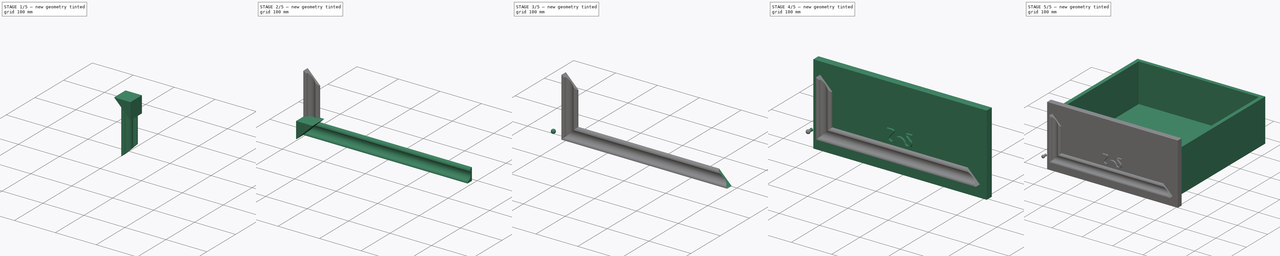
[diagram: build sequence overview — one tinted view per stage of 5, left to right]
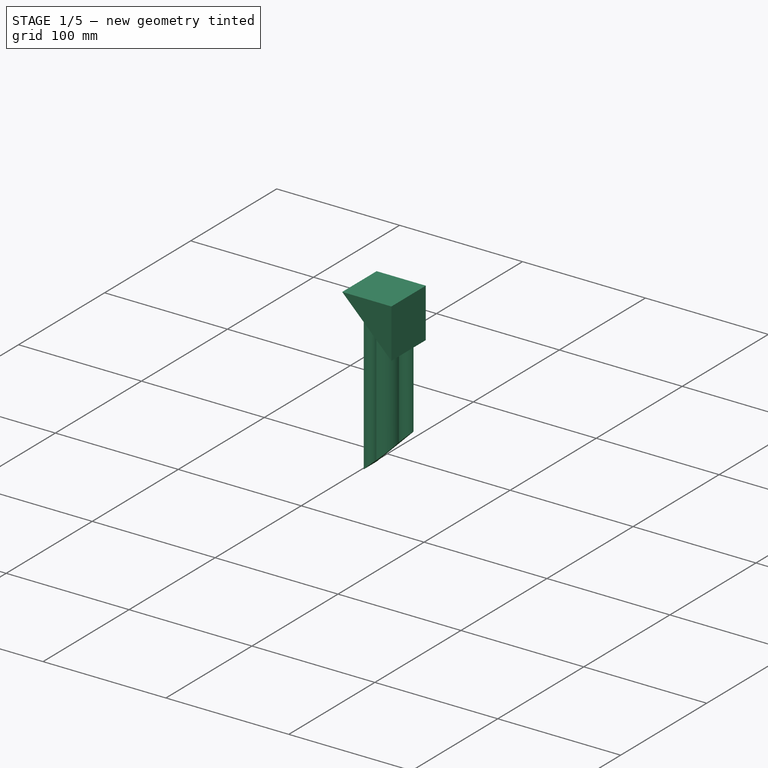
[diagram: stage 1 of 5 — iso view after this stage's code; geometry added in this stage tinted green]
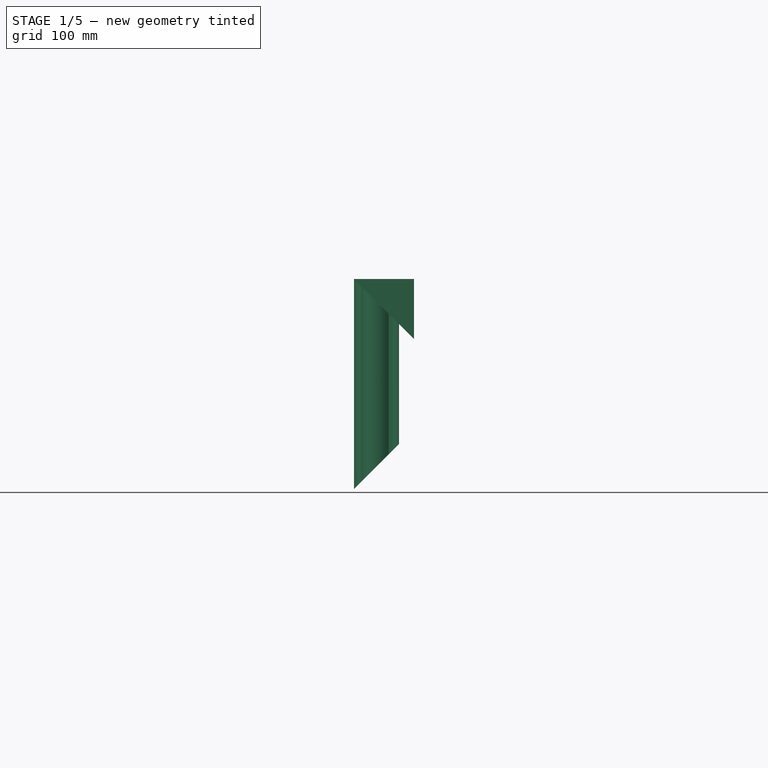
[diagram: stage 1 of 5 — front view after this stage's code; geometry added in this stage tinted green]
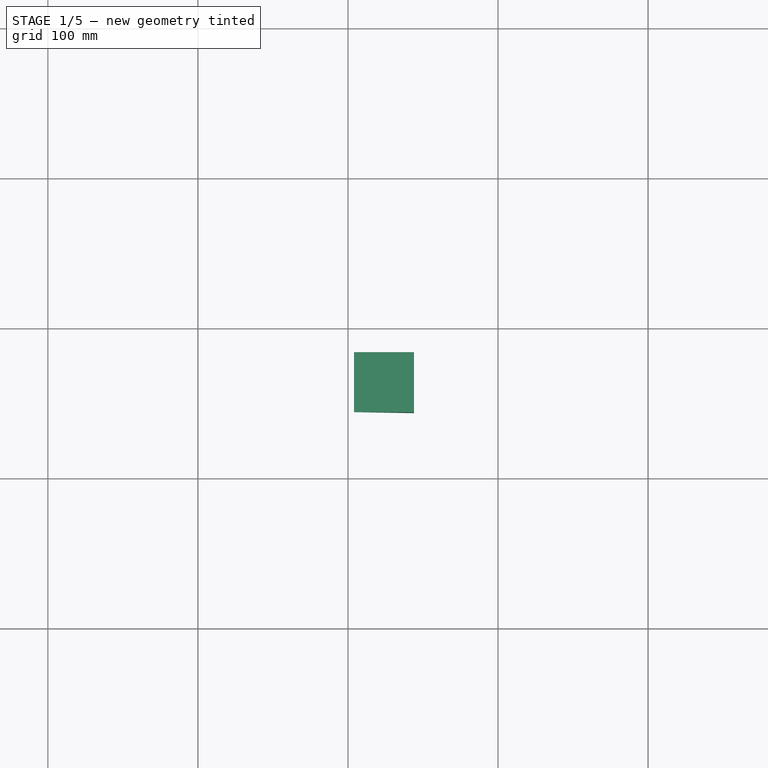
[diagram: stage 1 of 5 — top view after this stage's code; geometry added in this stage tinted green]
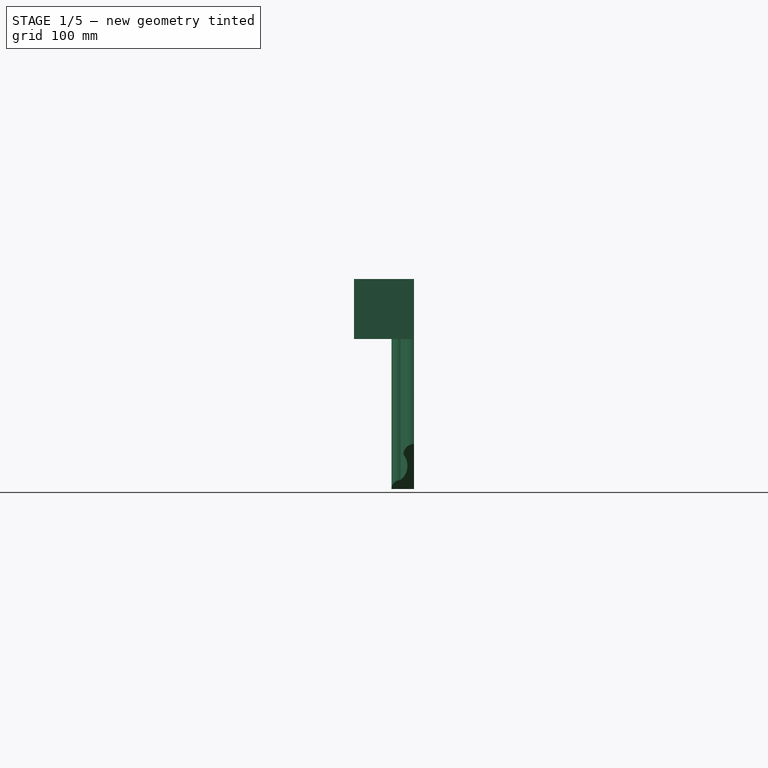
[diagram: stage 1 of 5 — right view after this stage's code; geometry added in this stage tinted green]
FCSTD DOCUMENT  (FreeCAD 1.1R20260325 (Git shallow))
Label: Drawer_002
License: All rights reserved
LicenseURL: http://en.wikipedia.org/wiki/All_rights_reserved
objects: App::Point×10, Sketcher::SketchObject×7, PartDesign::Pad×7, PartDesign::Body×7, App::LinkGroup×6, Part::Box×5, Part::Cut×4, App::Part×3, App::Link×3, Spreadsheet::Sheet×1, Part::Cone×1, Part::Sphere×1
note: 53 computed .brp shape members not serialized (recipe doc carries the construction recipe); baked Part::Feature solids carry a one-line shape summary decoded from their .brp

FEATURE [App::Part] Part001  label="Part, Decoration, Bottom"
  Group = -> [Body,Body007,Body008,Cut,Cut001]
  Origin = -> Origin008
FEATURE [App::LinkGroup] LinkGroup002  label="LinkGroup, Decoration, Bottom"
  ElementList = -> [Part001]
  LinkMode = 0
  Texture_Repeat_X = 1
  Texture_Repeat_Y = 1
  Texture_Rotation = 0
  Texture_URL = https://upload.wikimedia.org/wikipedia/commons/d/d1/Wood_001_red_light.jpg
FEATURE [App::Link] Link001  label="Link, Decoration, Top"
  LinkPlacement = pos=(404,0,140) rot=(0,1,0;3.14159rad)
  LinkedObject = -> LinkGroup002
  Placement = pos=(404,0,140) rot=(0,1,0;3.14159rad)
  expr: .Placement.Base.x = 2 * <<settings>>.bsink + <<settings>>.dwidth - 2 * <<settings>>.dthick
  expr: .Placement.Base.z = <<settings>>.dheight
FEATURE [Sketcher::SketchObject] Sketch009  label="Pattern, Decoration, Left"
  ArcFitTolerance = 0
  AttachmentOffset = pos=(4,-18,0) rot=(0,0,1;0rad)
  AttachmentSupport = -> [XY_Plane012]
  ExternalTypes = [0]
  FullyConstrained = true
  MakeInternals = false
  MapMode = 5
  Placement = pos=(4,-18,0) rot=(0,0,1;0rad)
  _ExternalGeoVersion = 0
  expr: .AttachmentOffset.Base.x = <<settings>>.bsink
  expr: .AttachmentOffset.Base.y = -<<settings>>.fthick
  sketch-geometry (5):
    g0: LineSegment StartX=30 StartY=-1.8e-15 StartZ=0 EndX=0 EndY=-1.8e-15 EndZ=0
    g1: LineSegment StartX=0 StartY=-15 StartZ=0 EndX=0 EndY=-1.8e-15 EndZ=0
    g2: ArcOfCircle CenterX=0 CenterY=-9 CenterZ=0 NormalX=0 NormalY=0 NormalZ=1 AngleXU=0 Radius=6 StartAngle=4.71239 EndAngle=6.28319
    g3: ArcOfCircle CenterX=15.4828 CenterY=-16.3537 CenterZ=0 NormalX=0 NormalY=0 NormalZ=1 AngleXU=0 Radius=12 StartAngle=0.893826 EndAngle=2.48198
    g4: ArcOfCircle CenterX=23 CenterY=0 CenterZ=0 NormalX=0 NormalY=0 NormalZ=1 AngleXU=0 Radius=7 StartAngle=4.71239 EndAngle=6.28319
  constraints (17):
    c: Vertical(g1)
    c: Coincident(g0,g1)
    c: Horizontal(g0)
    c: Coincident(g0,g-1)
    c: DistanceY(g1,g1) = 15
    c: DistanceX(g0,g0) = 30
    c: Coincident(g2,g1)
    c: Coincident(g3,g2)
    c: Coincident(g4,g3)
    c: Coincident(g4,g0)
    c: PointOnObject(g4,g0)
    c: PointOnObject(g2,g1)
    c: Radius(g2) = 6
    c: Radius(g3) = 12
    c: Radius(g4) = 7
    c: Horizontal(g2,g2)
    c: Vertical(g3,g4)
FEATURE [PartDesign::Pad] Pad009  label="Decoration, Left"
  Direction = (0,0,1)
  Length = 140
  Length2 = 10
  Profile = -> Sketch009
  ReferenceAxis = -> Sketch009 [N_Axis]
  SideType = 0
  Suppressed = false
  Type = 0
  Type2 = 0
  expr: Length = <<settings>>.dheight
FEATURE [PartDesign::Body] Body009  label="Body, Decoration, Left"
  AllowCompound = true
  Group = -> [Sketch009,Pad009]
  Origin = -> Origin013
  Tip = -> Pad009
FEATURE [Sketcher::SketchObject] Sketch010  label="Pattern, Decoration, Left, Cut, Bottom"
  ArcFitTolerance = 0
  AttachmentOffset = pos=(4,0,18) rot=(0,0,1;0rad)
  AttachmentSupport = -> [XZ_Plane013]
  ExternalTypes = [0]
  FullyConstrained = true
  MakeInternals = false
  MapMode = 5
  Placement = pos=(4,-18,4e-15) rot=(1,0,0;1.5708rad)
  _ExternalGeoVersion = 0
  expr: .AttachmentOffset.Base.x = <<settings>>.bsink
  expr: .AttachmentOffset.Base.z = <<settings>>.fthick
  sketch-geometry (3):
    g0: LineSegment StartX=0 StartY=0 StartZ=0 EndX=40 EndY=40 EndZ=0
    g1: LineSegment StartX=40 StartY=40 StartZ=0 EndX=40 EndY=0 EndZ=0
    g2: LineSegment StartX=40 StartY=0 StartZ=0 EndX=0 EndY=0 EndZ=0
  constraints (8):
    c: Coincident(g-1,g0)
    c: Coincident(g0,g1)
    c: PointOnObject(g1,g-1)
    c: Vertical(g1)
    c: Coincident(g1,g2)
    c: Coincident(g2,g0)
    c: Equal(g1,g2)
    c: DistanceY(g1,g1) = 40
FEATURE [PartDesign::Pad] Pad010  label="Decoration, Left, Cut, Bottom"
  Direction = (0,-1,2e-16)
  Length = 40
  Length2 = 10
  Placement = pos=(0,0,0) rot=(1,0,0;1.5708rad)
  Profile = -> Sketch010
  ReferenceAxis = -> Sketch010 [N_Axis]
  SideType = 0
  Suppressed = false
  Type = 0
  Type2 = 0
FEATURE [PartDesign::Body] Body010  label="Body, Decoration, Left, Cut, Bottom"
  AllowCompound = true
  Group = -> [Sketch010,Pad010]
  Origin = -> Origin014
  Tip = -> Pad010
FEATURE [Sketcher::SketchObject] Sketch011  label="Pattern, Decoration, Left, Cut, Top"
  ArcFitTolerance = 0
  AttachmentOffset = pos=(4,140,18) rot=(0,0,1;0rad)
  AttachmentSupport = -> [XZ_Plane014]
  ExternalTypes = [0]
  FullyConstrained = true
  MakeInternals = false
  MapMode = 5
  Placement = pos=(4,-18,140) rot=(1,0,0;1.5708rad)
  _ExternalGeoVersion = 0
  expr: .AttachmentOffset.Base.x = <<settings>>.bsink
  expr: .AttachmentOffset.Base.y = <<settings>>.dheight
  expr: .AttachmentOffset.Base.z = <<settings>>.fthick
  sketch-geometry (3):
    g0: LineSegment StartX=0 StartY=0 StartZ=0 EndX=40 EndY=-40 EndZ=0
    g1: LineSegment StartX=40 StartY=-40 StartZ=0 EndX=40 EndY=0 EndZ=0
    g2: LineSegment StartX=40 StartY=0 StartZ=0 EndX=0 EndY=0 EndZ=0
  constraints (8):
    c: Coincident(g-1,g0)
    c: Coincident(g0,g1)
    c: PointOnObject(g1,g-1)
    c: Vertical(g1)
    c: Coincident(g1,g2)
    c: Coincident(g2,g0)
    c: Equal(g1,g2)
    c: DistanceY(g1,g1) = 40
FEATURE [PartDesign::Pad] Pad011  label="Decoration, Left, Cut, Top"
  Direction = (0,-1,2e-16)
  Length = 40
  Length2 = 10
  Placement = pos=(0,0,0) rot=(1,0,0;1.5708rad)
  Profile = -> Sketch011
  ReferenceAxis = -> Sketch011 [N_Axis]
  SideType = 0
  Suppressed = false
  Type = 0
  Type2 = 0
FEATURE [PartDesign::Body] Body011  label="Body, Decoration, Left, Cut, Top"
  AllowCompound = true
  Group = -> [Sketch011,Pad011]
  Origin = -> Origin015
  Tip = -> Pad011
FEATURE [Part::Cut] Cut002
  Base = -> Body009
  Tool = -> Body010
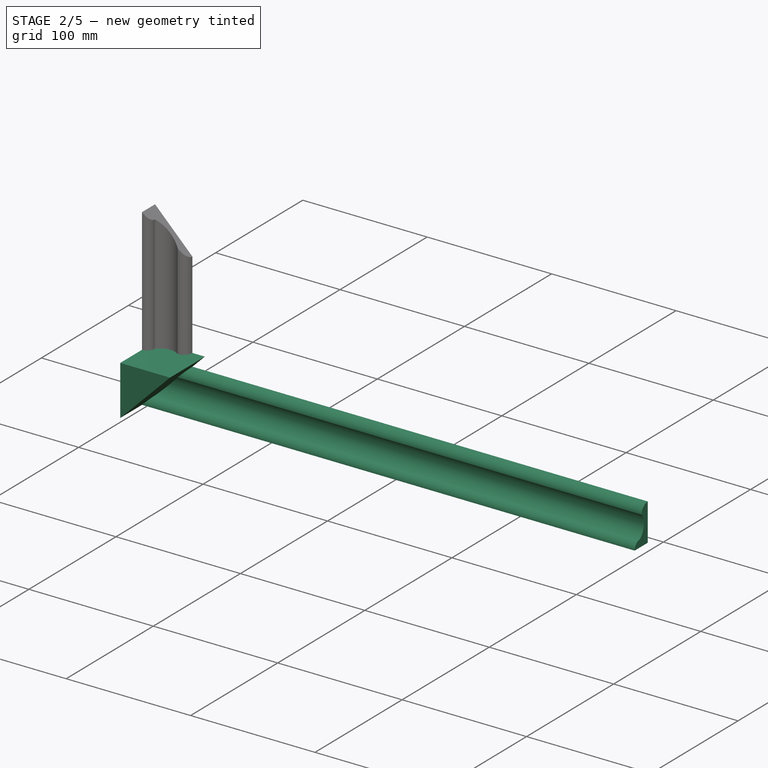
[diagram: stage 2 of 5 — iso view after this stage's code; geometry added in this stage tinted green]
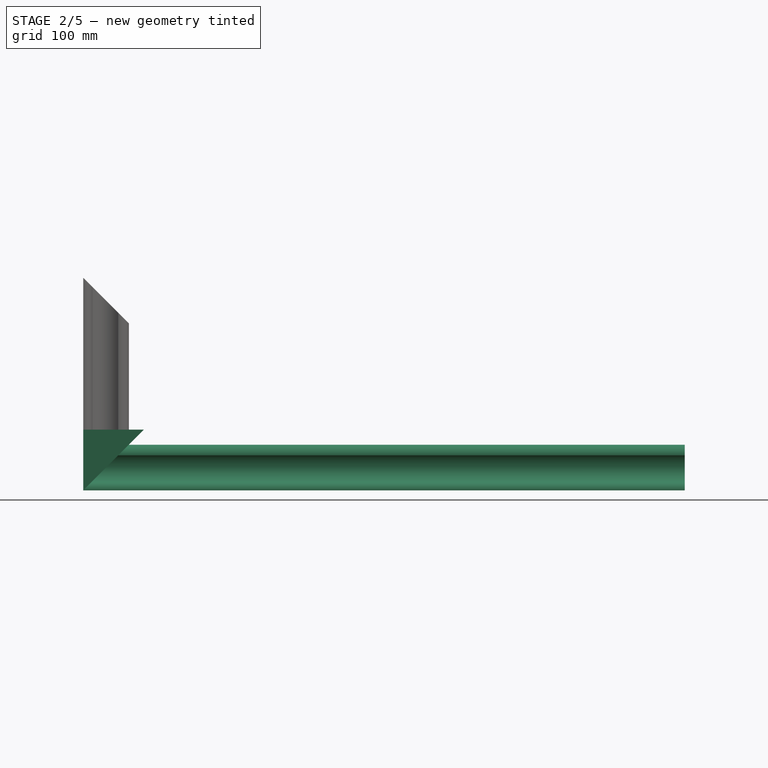
[diagram: stage 2 of 5 — front view after this stage's code; geometry added in this stage tinted green]
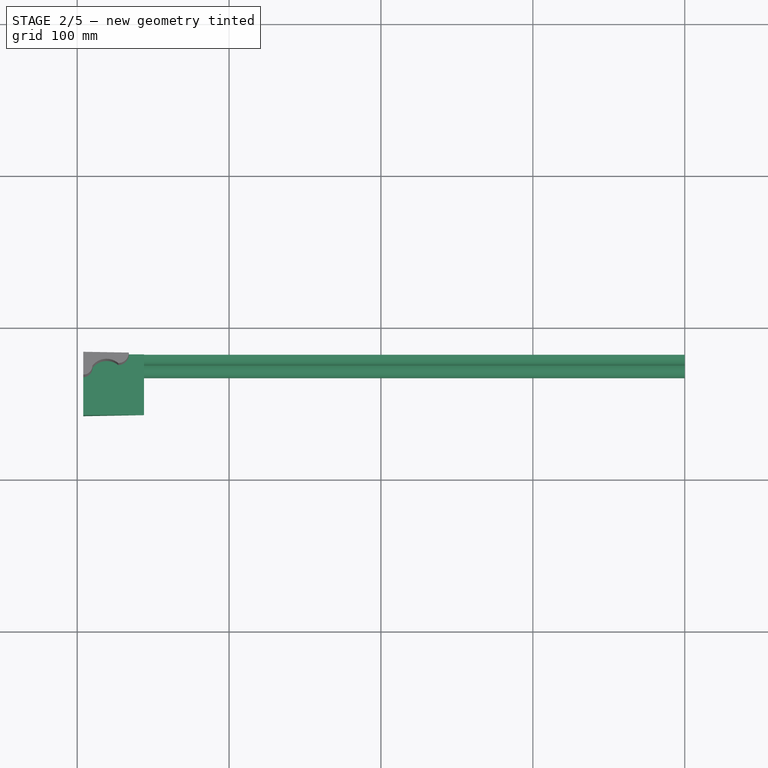
[diagram: stage 2 of 5 — top view after this stage's code; geometry added in this stage tinted green]
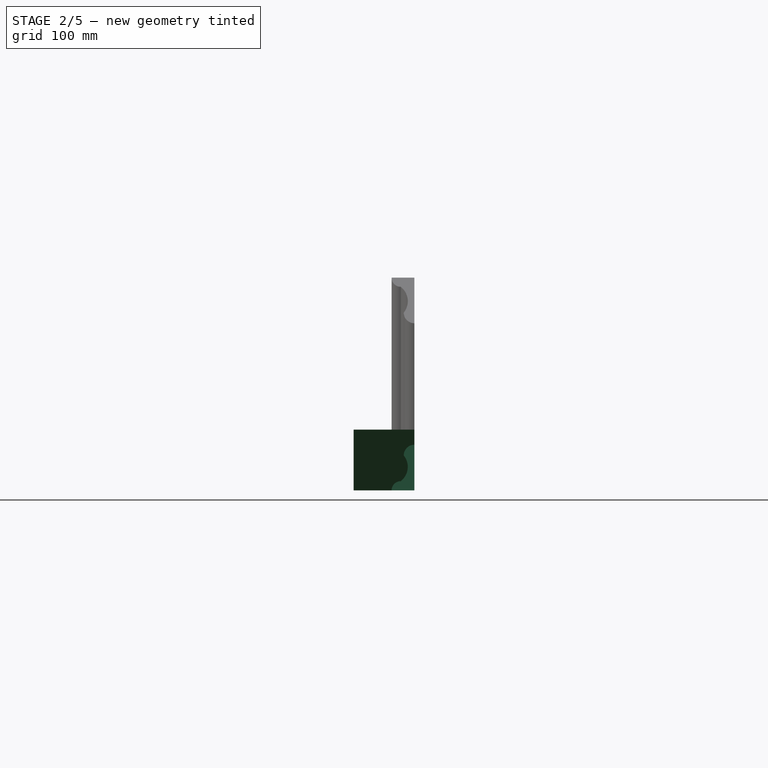
[diagram: stage 2 of 5 — right view after this stage's code; geometry added in this stage tinted green]
FEATURE [App::LinkGroup] LinkGroup001  label="Handle, Pin, Left"
  ElementList = -> [Cone,Sphere]
  LinkMode = 0
  Placement = pos=(210,-18,70) rot=(0,0,1;0rad)
  Texture_Repeat_X = 1
  Texture_Repeat_Y = 1
  Texture_Rotation = 0
  Texture_URL = https://upload.wikimedia.org/wikipedia/commons/7/70/Metal_003_black_light.jpg
  expr: .Placement.Base.x = <<settings>>.dwidth / 2
  expr: .Placement.Base.y = -<<settings>>.fthick
  expr: .Placement.Base.z = <<settings>>.dheight / 2
FEATURE [App::Link] Link  label="Handle, Pin, Right"
  LinkPlacement = pos=(270,-18,70) rot=(0,0,1;0rad)
  LinkedObject = -> LinkGroup001
  Placement = pos=(270,-18,70) rot=(0,0,1;0rad)
  expr: .Placement.Base.x = 60 mm + <<settings>>.dwidth / 2
  expr: .Placement.Base.y = -<<settings>>.fthick
  expr: .Placement.Base.z = <<settings>>.dheight / 2
FEATURE [Sketcher::SketchObject] Sketch  label="Pattern, Decoration, Bottom"
  ArcFitTolerance = 0
  AttachmentOffset = pos=(-18,0,4) rot=(0,0,1;0rad)
  AttachmentSupport = -> [YZ_Plane008]
  ExternalTypes = [0]
  FullyConstrained = true
  MakeInternals = false
  MapMode = 5
  Placement = pos=(4,-18,0) rot=(0.57735,0.57735,0.57735;2.0944rad)
  _ExternalGeoVersion = 0
  expr: .AttachmentOffset.Base.x = -<<settings>>.fthick
  expr: .AttachmentOffset.Base.z = <<settings>>.bsink
  sketch-geometry (5):
    g0: LineSegment StartX=4e-16 StartY=30 StartZ=0 EndX=4e-16 EndY=0 EndZ=0
    g1: LineSegment StartX=4e-16 StartY=0 StartZ=0 EndX=-15 EndY=0 EndZ=0
    g2: ArcOfCircle CenterX=0 CenterY=23 CenterZ=0 NormalX=0 NormalY=0 NormalZ=1 AngleXU=0 Radius=7 StartAngle=1.5708 EndAngle=3.14159
    g3: ArcOfCircle CenterX=-16.3537 CenterY=15.4828 CenterZ=0 NormalX=0 NormalY=0 NormalZ=1 AngleXU=0 Radius=12 StartAngle=5.372 EndAngle=6.96016
    g4: ArcOfCircle CenterX=-9 CenterY=0 CenterZ=0 NormalX=0 NormalY=0 NormalZ=1 AngleXU=0 Radius=6 StartAngle=1.5708 EndAngle=3.14159
  constraints (17):
    c: Vertical(g0)
    c: Coincident(g1,g0)
    c: Horizontal(g1)
    c: Coincident(g2,g0)
    c: Coincident(g3,g2)
    c: Coincident(g4,g3)
    c: Coincident(g4,g1)
    c: DistanceY(g0,g0) = 30
    c: DistanceX(g1,g1) = 15
    c: Coincident(g0,g-1)
    c: PointOnObject(g2,g0)
    c: PointOnObject(g4,g1)
    c: Radius(g2) = 7
    c: Radius(g3) = 12
    c: Radius(g4) = 6
    c: Vertical(g3,g4)
    c: Horizontal(g2,g2)
FEATURE [PartDesign::Pad] Pad  label="Decoration, Bottom"
  Direction = (1,0,0)
  Length = 396
  Length2 = 10
  Placement = pos=(0,0,0) rot=(0.57735,0.57735,0.57735;2.0944rad)
  Profile = -> Sketch
  ReferenceAxis = -> Sketch [N_Axis]
  SideType = 0
  Suppressed = false
  Type = 0
  Type2 = 0
  expr: Length = <<settings>>.dwidth - 2 * <<settings>>.dthick
FEATURE [PartDesign::Body] Body  label="Body, Decoration, Bottom"
  AllowCompound = true
  Group = -> [Sketch,Pad]
  Origin = -> Origin009
  Tip = -> Pad
FEATURE [Sketcher::SketchObject] Sketch007  label="Pattern, Decoration, Bottom, Cut, Left"
  ArcFitTolerance = 0
  AttachmentOffset = pos=(4,0,18) rot=(0,0,1;0rad)
  AttachmentSupport = -> [XZ_Plane009]
  ExternalTypes = [0]
  FullyConstrained = true
  MakeInternals = false
  MapMode = 5
  Placement = pos=(4,-18,4e-15) rot=(1,0,0;1.5708rad)
  _ExternalGeoVersion = 0
  expr: .AttachmentOffset.Base.x = <<settings>>.bsink
  expr: .AttachmentOffset.Base.z = <<settings>>.fthick
  sketch-geometry (3):
    g0: LineSegment StartX=0 StartY=0 StartZ=0 EndX=40 EndY=40 EndZ=0
    g1: LineSegment StartX=40 StartY=40 StartZ=0 EndX=0 EndY=40 EndZ=0
    g2: LineSegment StartX=0 StartY=40 StartZ=0 EndX=0 EndY=0 EndZ=0
  constraints (8):
    c: Coincident(g0,g1)
    c: Horizontal(g1)
    c: Coincident(g1,g2)
    c: Coincident(g2,g0)
    c: Coincident(g0,g-1)
    c: Vertical(g2)
    c: Equal(g2,g1)
    c: DistanceY(g2,g2) = 40
FEATURE [PartDesign::Pad] Pad007  label="Decoration, Bottom, Cut, Left"
  Direction = (0,-1,2e-16)
  Length = 40
  Length2 = 10
  Placement = pos=(0,0,0) rot=(1,0,0;1.5708rad)
  Profile = -> Sketch007
  ReferenceAxis = -> Sketch007 [N_Axis]
  SideType = 0
  Suppressed = false
  Type = 0
  Type2 = 0
FEATURE [Part::Cut] Cut003  label="Cut, Decoration, Left"
  Base = -> Cut002
  Tool = -> Body011
FEATURE [App::Part] Part002  label="Part, Decoration, Left"
  Group = -> [Body009,Body010,Body011,Cut002,Cut003]
  Origin = -> Origin012
FEATURE [App::LinkGroup] LinkGroup003  label="LinkGroup, Decoration, Left"
  ElementList = -> [Part002]
  LinkMode = 0
  Texture_Repeat_X = 1
  Texture_Repeat_Y = 1
  Texture_Rotation = 0
  Texture_URL = https://upload.wikimedia.org/wikipedia/commons/d/d1/Wood_001_red_light.jpg
FEATURE [App::Link] Link002  label="Link, Decoration, Right"
  LinkPlacement = pos=(404,0,140) rot=(0,1,0;3.14159rad)
  LinkedObject = -> LinkGroup003
  Placement = pos=(404,0,140) rot=(0,1,0;3.14159rad)
  expr: .Placement.Base.x = 2 * <<settings>>.bsink + <<settings>>.dwidth - 2 * <<settings>>.dthick
  expr: .Placement.Base.z = <<settings>>.dheight
FEATURE [App::LinkGroup] LinkGroup004  label="Drawer, link this"
  ElementList = -> [LinkGroup,Part,LinkGroup001,Link,LinkGroup002,Link001,LinkGroup003,Link002]
  LinkMode = 0
FEATURE [App::LinkGroup] LinkGroup005  label="Drawer, hide this"
  ElementList = -> [Spreadsheet,LinkGroup004]
  LinkMode = 0
FEATURE [App::Point] Origin016  label="Origin"
  Role = Origin
FEATURE [App::Point] Origin017  label="Origin"
  Role = Origin
FEATURE [App::Point] Origin018  label="Origin"
  Role = Origin
FEATURE [App::Point] Origin019  label="Origin"
  Role = Origin
FEATURE [App::Point] Origin020  label="Origin"
  Role = Origin
FEATURE [App::Point] Origin021  label="Origin"
  Role = Origin
FEATURE [App::Point] Origin022  label="Origin"
  Role = Origin
FEATURE [App::Point] Origin023  label="Origin"
  Role = Origin
FEATURE [App::Point] Origin024  label="Origin"
  Role = Origin
FEATURE [App::Point] Origin025  label="Origin"
  Role = Origin
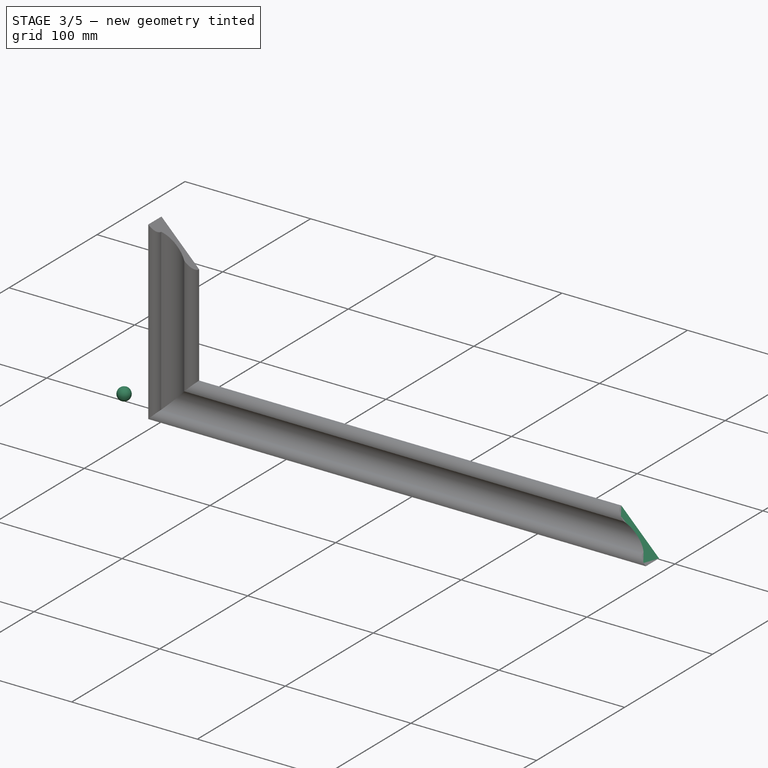
[diagram: stage 3 of 5 — iso view after this stage's code; geometry added in this stage tinted green]
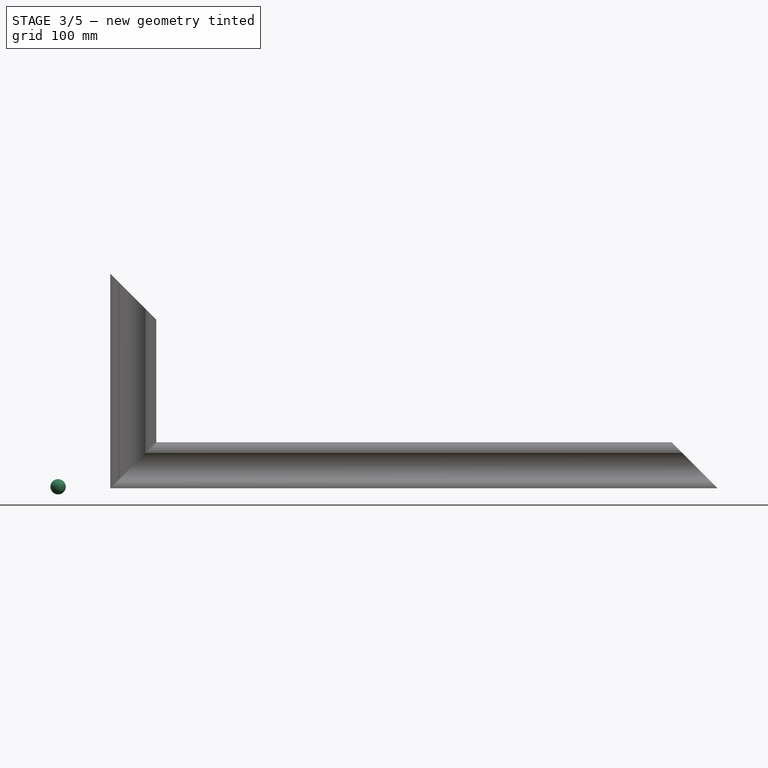
[diagram: stage 3 of 5 — front view after this stage's code; geometry added in this stage tinted green]
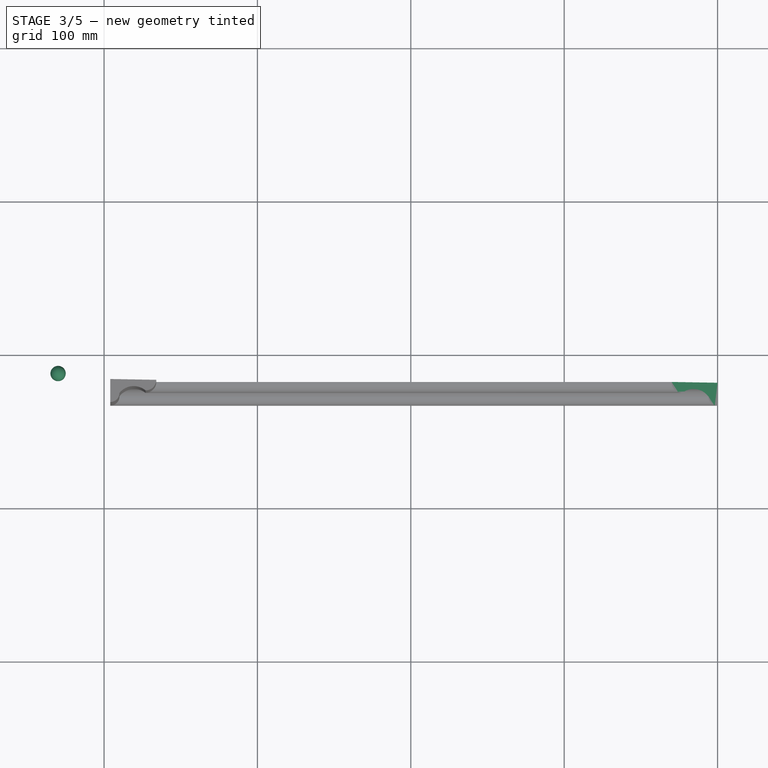
[diagram: stage 3 of 5 — top view after this stage's code; geometry added in this stage tinted green]
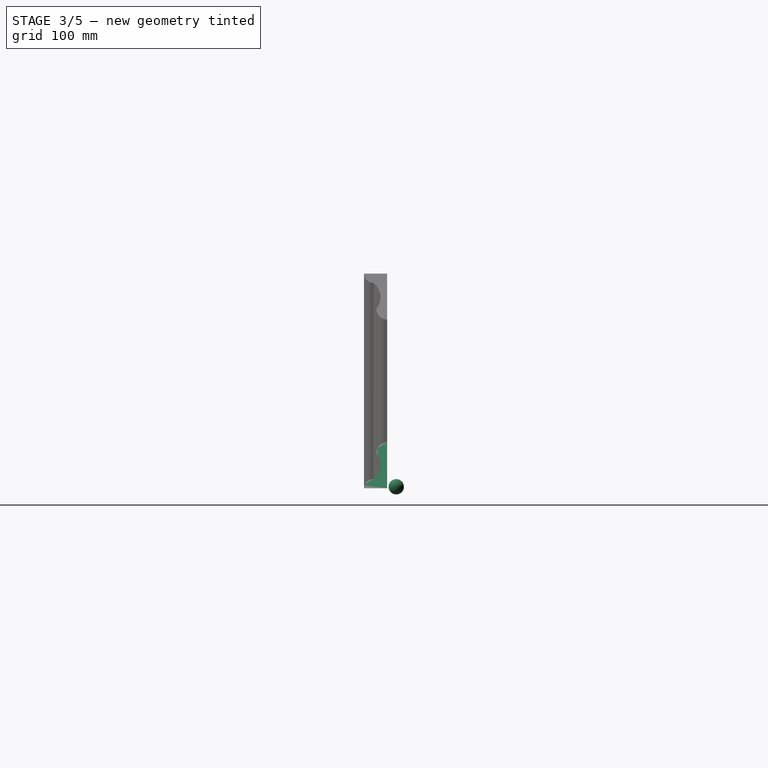
[diagram: stage 3 of 5 — right view after this stage's code; geometry added in this stage tinted green]
FEATURE [Part::Sphere] Sphere  label="Handle, Pin, left 2"
  Angle1 = -90
  Angle2 = 90
  Angle3 = 360
  AttacherType = Attacher::AttachEngine3D
  Placement = pos=(-30,-12,1) rot=(0,0,1;0rad)
  Radius = 5
FEATURE [PartDesign::Body] Body007  label="Body, Decoration, Bottom, Cut, Left"
  AllowCompound = true
  Group = -> [Sketch007,Pad007]
  Origin = -> Origin010
  Tip = -> Pad007
FEATURE [Sketcher::SketchObject] Sketch008  label="Pattern, Decoration, Bottom, Cut, Right"
  ArcFitTolerance = 0
  AttachmentOffset = pos=(400,0,18) rot=(0,0,1;0rad)
  AttachmentSupport = -> [XZ_Plane010]
  ExternalTypes = [0]
  FullyConstrained = true
  MakeInternals = false
  MapMode = 5
  Placement = pos=(400,-18,4e-15) rot=(1,0,0;1.5708rad)
  _ExternalGeoVersion = 0
  expr: .AttachmentOffset.Base.x = <<settings>>.bsink + <<settings>>.dwidth - 2 * <<settings>>.dthick
  expr: .AttachmentOffset.Base.z = <<settings>>.fthick
  sketch-geometry (3):
    g0: LineSegment StartX=-40 StartY=40 StartZ=0 EndX=0 EndY=0 EndZ=0
    g1: LineSegment StartX=0 StartY=0 StartZ=0 EndX=0 EndY=40 EndZ=0
    g2: LineSegment StartX=0 StartY=40 StartZ=0 EndX=-40 EndY=40 EndZ=0
  constraints (8):
    c: Coincident(g0,g-1)
    c: Coincident(g0,g1)
    c: PointOnObject(g1,g-2)
    c: Coincident(g1,g2)
    c: Coincident(g2,g0)
    c: Horizontal(g2)
    c: Equal(g2,g1)
    c: DistanceY(g1,g1) = 40
FEATURE [PartDesign::Pad] Pad008  label="Decoration, Bottom, Cut, Right"
  Direction = (0,-1,2e-16)
  Length = 40
  Length2 = 10
  Placement = pos=(0,0,0) rot=(1,0,0;1.5708rad)
  Profile = -> Sketch008
  ReferenceAxis = -> Sketch008 [N_Axis]
  SideType = 0
  Suppressed = false
  Type = 0
  Type2 = 0
FEATURE [PartDesign::Body] Body008  label="Body, Decoration, Bottom, Cut, Right"
  AllowCompound = true
  Group = -> [Sketch008,Pad008]
  Origin = -> Origin011
  Tip = -> Pad008
FEATURE [Part::Cut] Cut
  Base = -> Body
  Tool = -> Body007
FEATURE [Part::Cut] Cut001  label="Cut, Decoration, Bottom"
  Base = -> Cut
  Texture = https://upload.wikimedia.org/wikipedia/commons/d/d1/Wood_001_red_light.jpg
  Tool = -> Body008
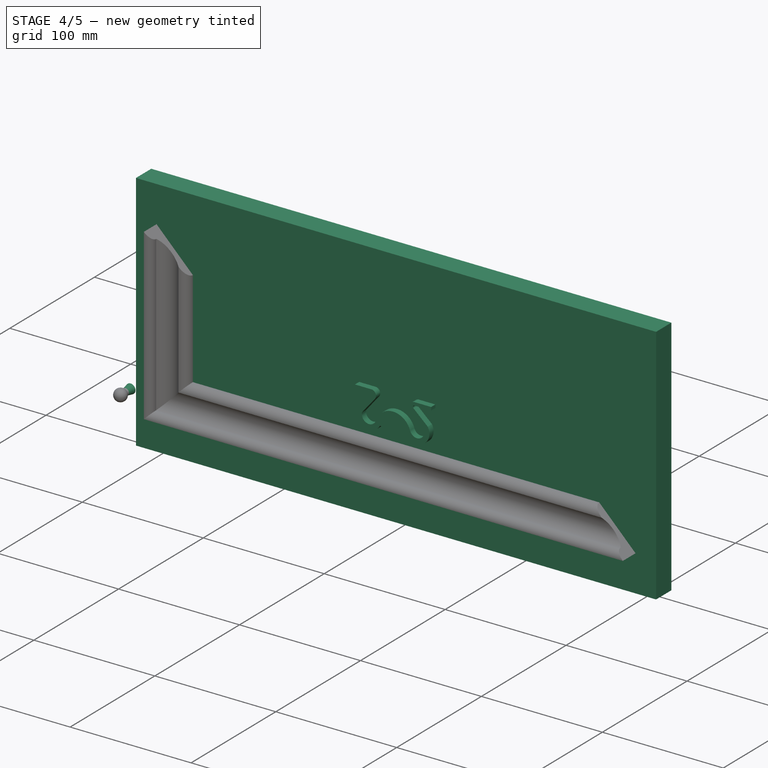
[diagram: stage 4 of 5 — iso view after this stage's code; geometry added in this stage tinted green]
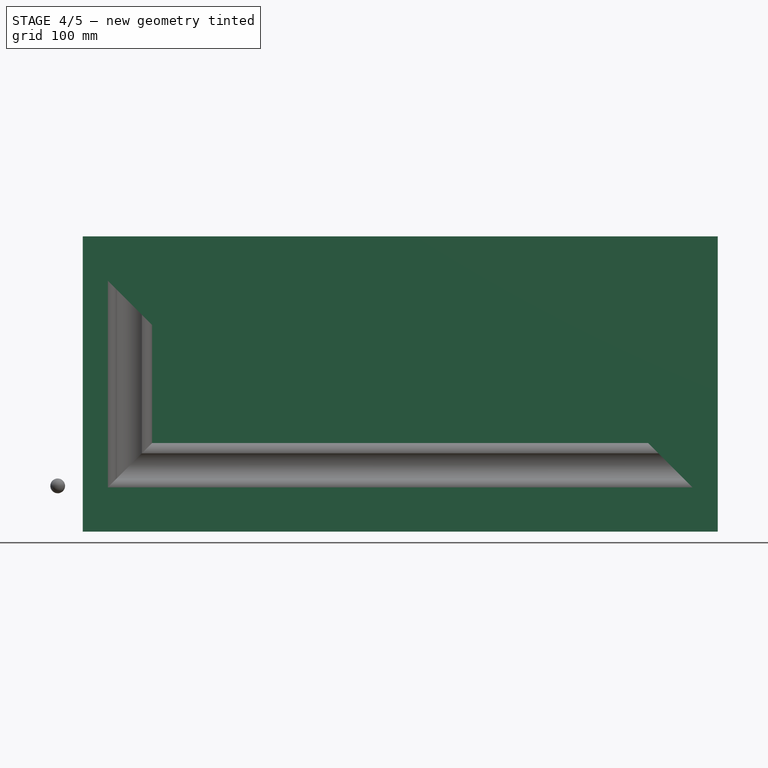
[diagram: stage 4 of 5 — front view after this stage's code; geometry added in this stage tinted green]
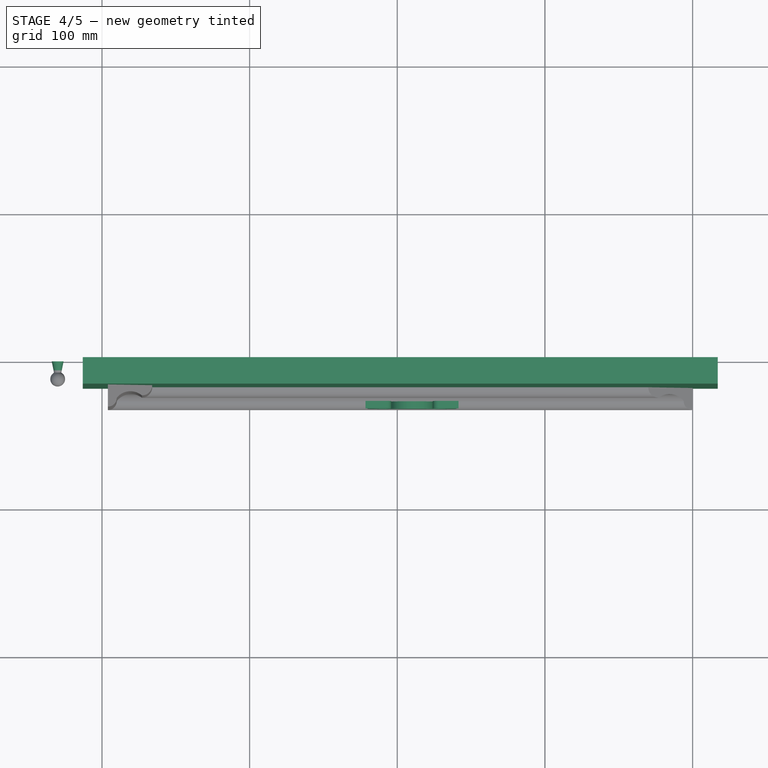
[diagram: stage 4 of 5 — top view after this stage's code; geometry added in this stage tinted green]
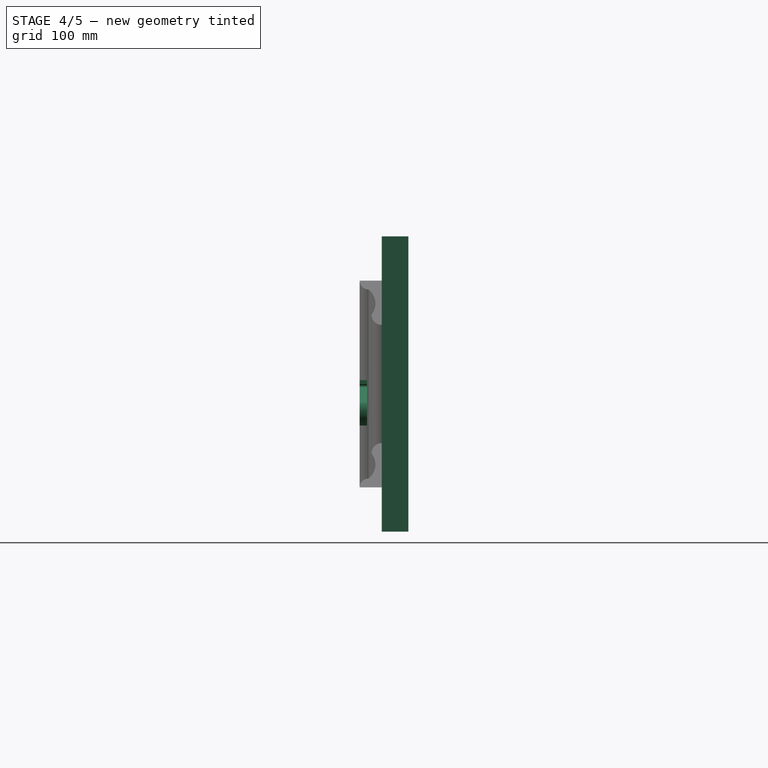
[diagram: stage 4 of 5 — right view after this stage's code; geometry added in this stage tinted green]
FEATURE [Part::Box] Box004  label="Front"
  AttacherType = Attacher::AttachEngine3D
  Height = 200
  Length = 430
  Placement = pos=(-13,-18,-30) rot=(0,0,1;0rad)
  Texture_Repeat_X = 1
  Texture_Repeat_Y = 1
  Texture_Rotation = 0
  Texture_URL = https://upload.wikimedia.org/wikipedia/commons/d/d1/Wood_001_red_light.jpg
  Width = 18
  expr: .Placement.Base.x = <<settings>>.bsink - (<<settings>>.fwidth - <<settings>>.dwidth) / 2 - <<settings>>.dthick
  expr: .Placement.Base.y = -<<settings>>.fthick
  expr: .Placement.Base.z = -(<<settings>>.fheight - <<settings>>.dheight) / 2
  expr: Height = <<settings>>.fheight
  expr: Length = <<settings>>.fwidth
  expr: Width = <<settings>>.fthick
FEATURE [App::LinkGroup] LinkGroup
  ElementList = -> [Box,Box001,Box002,Box003,Box004]
  LinkMode = 0
FEATURE [Sketcher::SketchObject] Sketch006  label="Pattern, Handle"
  ArcFitTolerance = 0
  AttachmentOffset = pos=(210,70,28) rot=(0,0,1;0rad)
  AttachmentSupport = -> [XZ_Plane006]
  ExternalTypes = [0]
  FullyConstrained = true
  MakeInternals = false
  MapMode = 5
  Placement = pos=(210,-28,70) rot=(1,0,0;1.5708rad)
  _ExternalGeoVersion = 0
  expr: .AttachmentOffset.Base.x = <<settings>>.dwidth / 2
  expr: .AttachmentOffset.Base.y = <<settings>>.dheight / 2
  expr: .AttachmentOffset.Base.z = <<settings>>.fthick + 10 mm
  sketch-geometry (20):
    g0: LineSegment StartX=-31.5 StartY=2.62 StartZ=0 EndX=-17.57 EndY=2.62 EndZ=0
    g1: LineSegment StartX=-31.5 StartY=0 StartZ=0 EndX=-17.3512 EndY=0 EndZ=0
    g2: LineSegment StartX=-16.85 StartY=-2.15 StartZ=0 EndX=-28.7075 EndY=-12.82 EndZ=0
    g3: LineSegment StartX=-15.2654 StartY=-4.11 StartZ=0 EndX=-25.6265 EndY=-16.59 EndZ=0
    g4: LineSegment StartX=15.2654 StartY=-4.11 StartZ=0 EndX=25.6265 EndY=-16.59 EndZ=0
    g5: LineSegment StartX=16.85 StartY=-2.15 StartZ=0 EndX=28.7075 EndY=-12.82 EndZ=0
    g6: LineSegment StartX=17.57 StartY=2.62 StartZ=0 EndX=31.5 EndY=2.62 EndZ=0
    g7: LineSegment StartX=17.3512 StartY=0 StartZ=0 EndX=31.5 EndY=0 EndZ=0
    g8: LineSegment StartX=-10.78 StartY=-22.72 StartZ=0 EndX=10.78 EndY=-22.72 EndZ=0
    g9: LineSegment StartX=-31.5 StartY=2.62 StartZ=0 EndX=-31.5 EndY=0 EndZ=0
    g10: LineSegment StartX=31.5 StartY=2.62 StartZ=0 EndX=31.5 EndY=0 EndZ=0
    g11: ArcOfCircle CenterX=-17.98 CenterY=-1.28 CenterZ=0 NormalX=0 NormalY=0 NormalZ=1 AngleXU=0 Radius=3.92149 StartAngle=5.47698 EndAngle=7.74924
    g12: ArcOfCircle CenterX=-17.98 CenterY=-1.28 CenterZ=0 NormalX=0 NormalY=0 NormalZ=1 AngleXU=0 Radius=1.42611 StartAngle=5.62706 EndAngle=7.39735
    g13: ArcOfCircle CenterX=-19.81 CenterY=-17.89 CenterZ=0 NormalX=0 NormalY=0 NormalZ=1 AngleXU=0 Radius=10.2406 StartAngle=2.62366 EndAngle=5.79202
    g14: ArcOfCircle CenterX=19.81 CenterY=-17.89 CenterZ=0 NormalX=0 NormalY=0 NormalZ=1 AngleXU=0 Radius=10.2406 StartAngle=3.63276 EndAngle=6.80112
    g15: ArcOfCircle CenterX=17.98 CenterY=-1.28 CenterZ=0 NormalX=0 NormalY=0 NormalZ=1 AngleXU=0 Radius=3.92149 StartAngle=1.67554 EndAngle=3.9478
    g16: ArcOfCircle CenterX=17.98 CenterY=-1.28 CenterZ=0 NormalX=0 NormalY=0 NormalZ=1 AngleXU=0 Radius=1.42611 StartAngle=2.02742 EndAngle=3.79772
    g17: ArcOfCircle CenterX=0 CenterY=-24.02 CenterZ=0 NormalX=0 NormalY=0 NormalZ=1 AngleXU=0 Radius=14.7824 StartAngle=0.285269 EndAngle=2.85632
    g18: ArcOfCircle CenterX=-19.81 CenterY=-17.89 CenterZ=0 NormalX=0 NormalY=0 NormalZ=1 AngleXU=0 Radius=5.95999 StartAngle=2.9217 EndAngle=5.94631
    g19: ArcOfCircle CenterX=19.81 CenterY=-17.89 CenterZ=0 NormalX=0 NormalY=0 NormalZ=1 AngleXU=0 Radius=5.95999 StartAngle=3.47847 EndAngle=6.50307
  constraints (66):
    c: Horizontal(g0)
    c: Horizontal(g1)
    c: Horizontal(g6)
    c: Horizontal(g7)
    c: Horizontal(g8)
    c: Coincident(g9,g0)
    c: Coincident(g9,g1)
    c: Vertical(g9)
    c: Coincident(g10,g6)
    c: Vertical(g10)
    c: Coincident(g10,g7)
    c: Coincident(g11,g0)
    c: Coincident(g11,g3)
    c: Coincident(g12,g1)
    c: Coincident(g12,g2)
    c: Coincident(g13,g2)
    c: Coincident(g13,g8)
    c: Coincident(g14,g5)
    c: Coincident(g14,g8)
    c: Coincident(g15,g4)
    c: Coincident(g15,g6)
    c: Coincident(g16,g7)
    c: Coincident(g16,g5)
    c: Coincident(g18,g3)
    c: Coincident(g18,g17)
    c: Coincident(g19,g17)
    c: Coincident(g19,g4)
    c: Coincident(g15,g16)
    c: Coincident(g11,g12)
    c: Horizontal(g2,g5)
    c: Horizontal(g3,g4)
    c: Horizontal(g0,g6)
    c: Horizontal(g1,g7)
    c: Horizontal(g5,g2)
    c: Horizontal(g13,g14)
    c: Horizontal(g18,g19)
    c: Horizontal(g17,g17)
    c: Horizontal(g3,g4)
    c: PointOnObject(g17,g-2)
    c: Equal(g11,g15)
    c: Equal(g0,g6)
    c: Equal(g1,g7)
    c: Equal(g3,g4)
    c: Equal(g18,g19)
    c: Equal(g2,g5)
    c: Equal(g13,g14)
    c: Horizontal(g11,g15)
    c: Coincident(g13,g18)
    c: PointOnObject(g7,g-1)
    c: DistanceY(g17,g-1) = 24.02
    c: DistanceY(g14,g-1) = 17.89
    c: DistanceY(g2,g-1) = 12.82
    c: DistanceY(g3,g-1) = 16.59
    c: DistanceY(g8,g-1) = 22.72
    c: DistanceX(g8,g-1) = 10.78
    c: DistanceY(g3,g-1) = 4.11
    c: DistanceY(g2,g-1) = 2.15
    c: DistanceY(g-1,g0) = 2.62
    c: DistanceX(g0,g6) = 63
    c: DistanceX(g13,g14) = 39.62
    c: DistanceX(g17,g17) = 28.37
    c: DistanceY(g17,g-1) = 19.86
    c: DistanceX(g11,g-1) = 17.98
    c: DistanceX(g0,g-1) = 17.57
    c: DistanceX(g2,g-1) = 16.85
    c: DistanceY(g11,g-1) = 1.28
FEATURE [PartDesign::Pad] Pad006  label="Handle"
  Direction = (0,-1,2e-16)
  Length = 5
  Length2 = 10
  Placement = pos=(0,0,0) rot=(1,0,0;1.5708rad)
  Profile = -> Sketch006
  ReferenceAxis = -> Sketch006 [N_Axis]
  SideType = 0
  Suppressed = false
  Type = 0
  Type2 = 0
FEATURE [PartDesign::Body] Body006  label="Body, Handle"
  AllowCompound = true
  Group = -> [Sketch006,Pad006]
  Origin = -> Origin007
  Tip = -> Pad006
FEATURE [App::Part] Part  label="Part, Handle"
  Group = -> [Body006]
  Origin = -> Origin
  Texture_Repeat_X = 1
  Texture_Repeat_Y = 1
  Texture_Rotation = 0
  Texture_URL = https://upload.wikimedia.org/wikipedia/commons/7/70/Metal_003_black_light.jpg
FEATURE [Part::Cone] Cone  label="Handle, Pin, left 1"
  Angle = 360
  AttacherType = Attacher::AttachEngine3D
  Height = 10
  Placement = pos=(-30,-10,1) rot=(-1,0,0;1.5708rad)
  Radius1 = 2
  Radius2 = 4
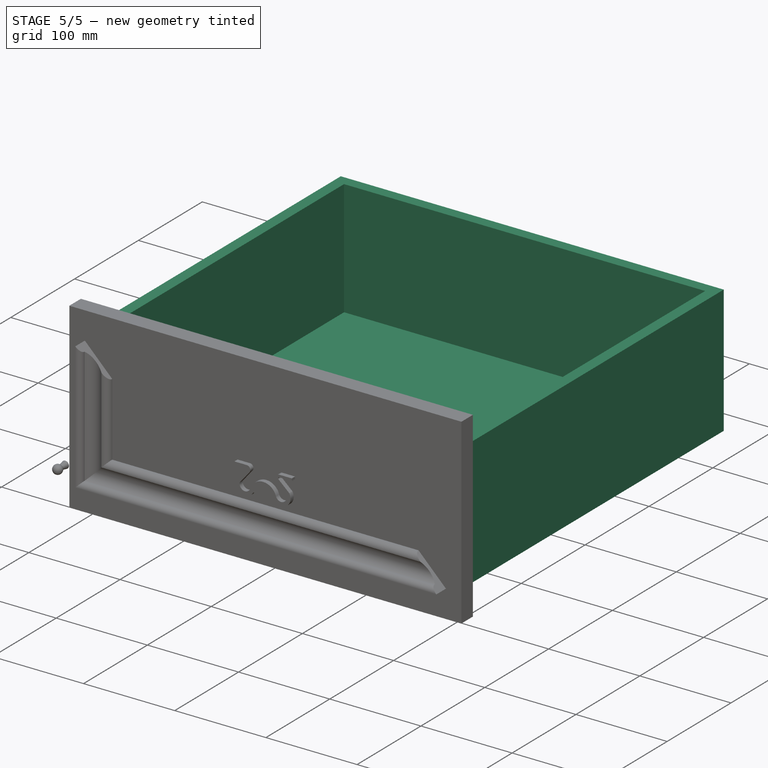
[diagram: stage 5 of 5 — iso view after this stage's code; geometry added in this stage tinted green]
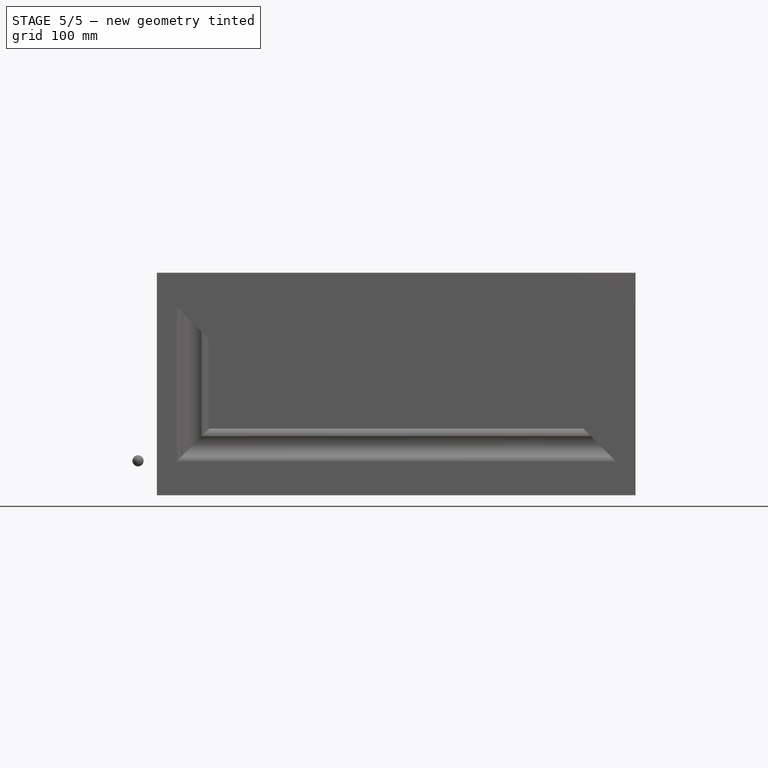
[diagram: stage 5 of 5 — front view after this stage's code; geometry added in this stage tinted green]
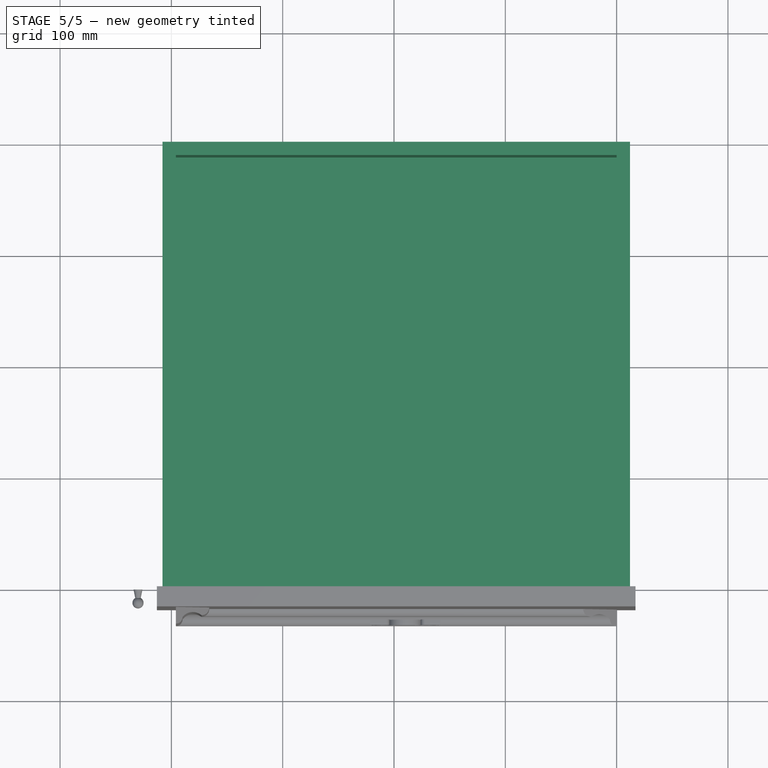
[diagram: stage 5 of 5 — top view after this stage's code; geometry added in this stage tinted green]
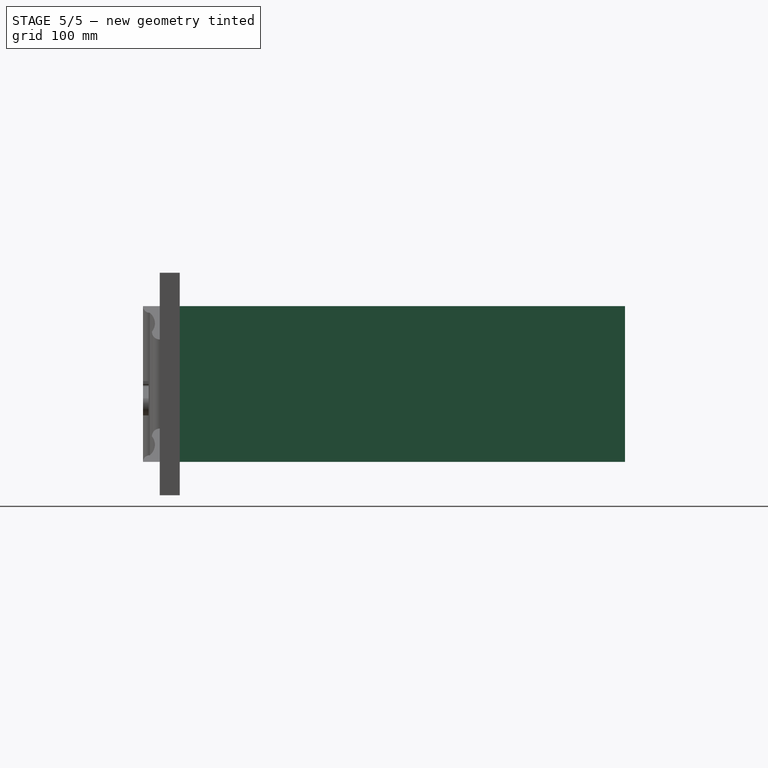
[diagram: stage 5 of 5 — right view after this stage's code; geometry added in this stage tinted green]
FEATURE [Spreadsheet::Sheet] Spreadsheet  label="settings"
  cells = A1='Settings (set here):; A2='Drawer width; B2(dwidth)==420 mm; A3='Drawer depth; B3(ddepth)==400 mm; A4='Drawer height; B4(dheight)==140 mm; A5='Front width; B5(fwidth)==430 mm; A6='Front height; B6(fheight)==200 mm; A7='Drawer thickness; B7(dthick)==12 mm; A8='Front thickness; B8(fthick)==18 mm; A9='Bottom thickness; B9(bthick)==3 mm; A10='Bottom offset; B10(boffset)==10 mm; A11='Bottom sink; B11(bsink)==4 mm
FEATURE [Part::Box] Box  label="Bottom"
  AttacherType = Attacher::AttachEngine3D
  Height = 3
  Length = 404
  Placement = pos=(0,-4,10) rot=(0,0,1;0rad)
  Texture_Repeat_X = 1
  Texture_Repeat_Y = 1
  Texture_Rotation = 0
  Texture_URL = https://upload.wikimedia.org/wikipedia/commons/9/99/Wood_016_chipboard_plain_white.jpg
  Width = 396
  expr: .Placement.Base.y = -<<settings>>.bsink
  expr: .Placement.Base.z = <<settings>>.boffset
  expr: Height = <<settings>>.bthick
  expr: Length = <<settings>>.dwidth - 2 * <<settings>>.dthick + 2 * <<settings>>.bsink
  expr: Width = <<settings>>.ddepth - <<settings>>.dthick + 2 * <<settings>>.bsink
FEATURE [Part::Box] Box001  label="Left"
  AttacherType = Attacher::AttachEngine3D
  Height = 140
  Length = 12
  Placement = pos=(-8,0,0) rot=(0,0,1;0rad)
  Texture_Repeat_X = 1
  Texture_Repeat_Y = 1
  Texture_Rotation = 0
  Texture_URL = https://upload.wikimedia.org/wikipedia/commons/9/99/Wood_016_chipboard_plain_white.jpg
  Width = 400
  expr: .Placement.Base.x = -<<settings>>.dthick + <<settings>>.bsink
  expr: Height = <<settings>>.dheight
  expr: Length = <<settings>>.dthick
  expr: Width = <<settings>>.ddepth
FEATURE [Part::Box] Box002  label="Right"
  AttacherType = Attacher::AttachEngine3D
  Height = 140
  Length = 12
  Placement = pos=(400,0,0) rot=(0,0,1;0rad)
  Texture_Repeat_X = 1
  Texture_Repeat_Y = 1
  Texture_Rotation = 0
  Texture_URL = https://upload.wikimedia.org/wikipedia/commons/9/99/Wood_016_chipboard_plain_white.jpg
  Width = 400
  expr: .Placement.Base.x = <<settings>>.dwidth - 2 * <<settings>>.dthick + <<settings>>.bsink
  expr: Height = <<settings>>.dheight
  expr: Length = <<settings>>.dthick
  expr: Width = <<settings>>.ddepth
FEATURE [Part::Box] Box003  label="Back"
  AttacherType = Attacher::AttachEngine3D
  Height = 140
  Length = 396
  Placement = pos=(4,388,0) rot=(0,0,1;0rad)
  Texture_Repeat_X = 1
  Texture_Repeat_Y = 1
  Texture_Rotation = 0
  Texture_URL = https://upload.wikimedia.org/wikipedia/commons/9/99/Wood_016_chipboard_plain_white.jpg
  Width = 12
  expr: .Placement.Base.x = <<settings>>.bsink
  expr: .Placement.Base.y = <<settings>>.ddepth - <<settings>>.dthick
  expr: Height = <<settings>>.dheight
  expr: Length = <<settings>>.dwidth - 2 * <<settings>>.dthick
  expr: Width = <<settings>>.dthick
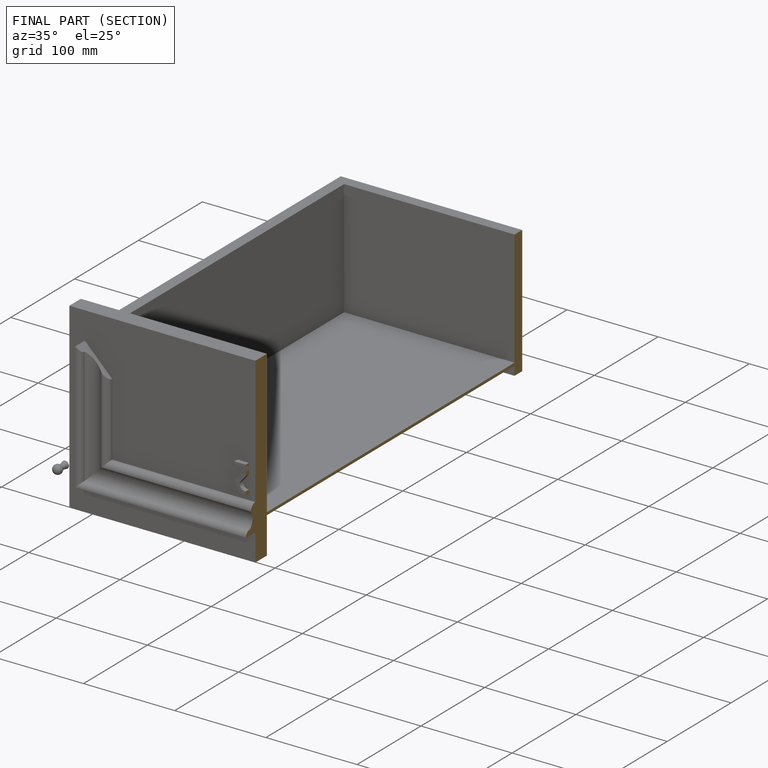
[diagram: finished part — half-section view (interior)]
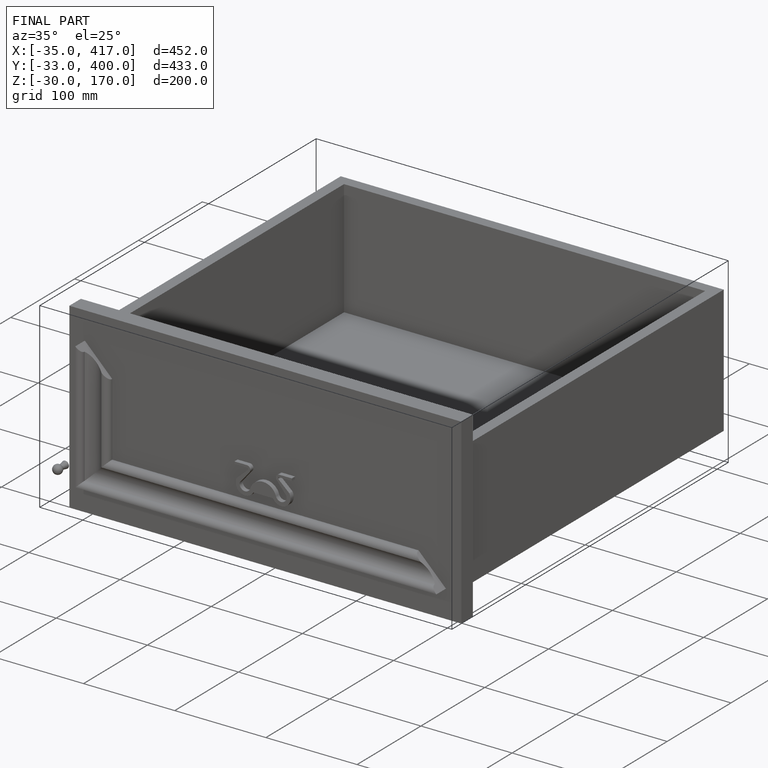
[diagram: finished part — iso view with bounding-box wireframe]
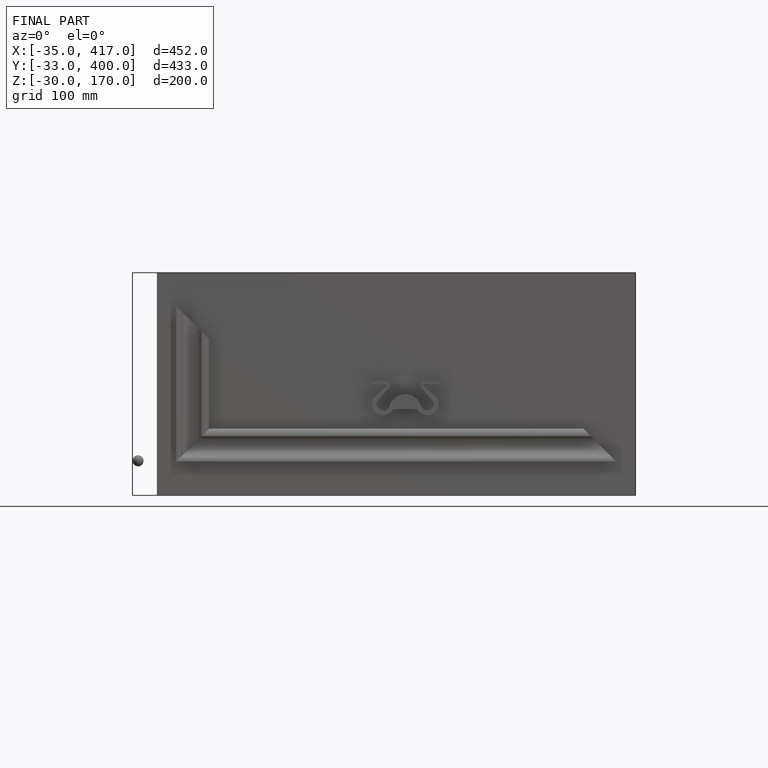
[diagram: finished part — front view with bounding-box wireframe]
